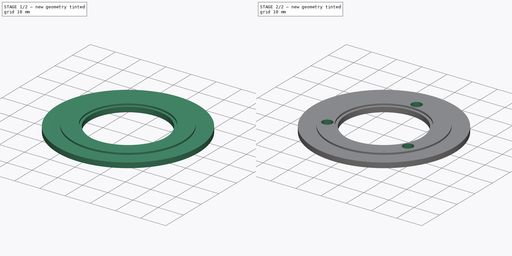
[diagram: build sequence overview — one tinted view per stage of 2, left to right]
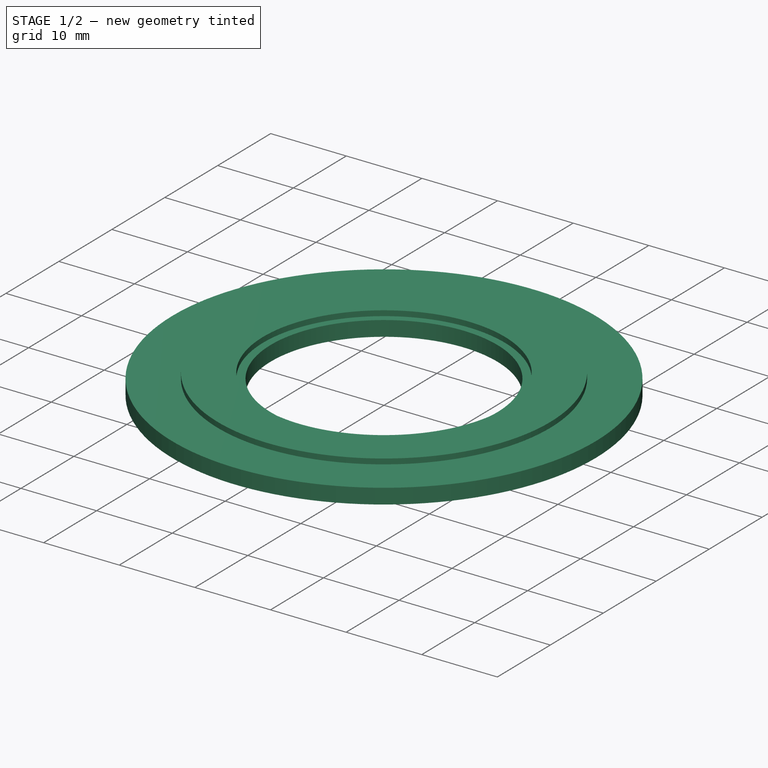
[diagram: stage 1 of 2 — iso view after this stage's code; geometry added in this stage tinted green]
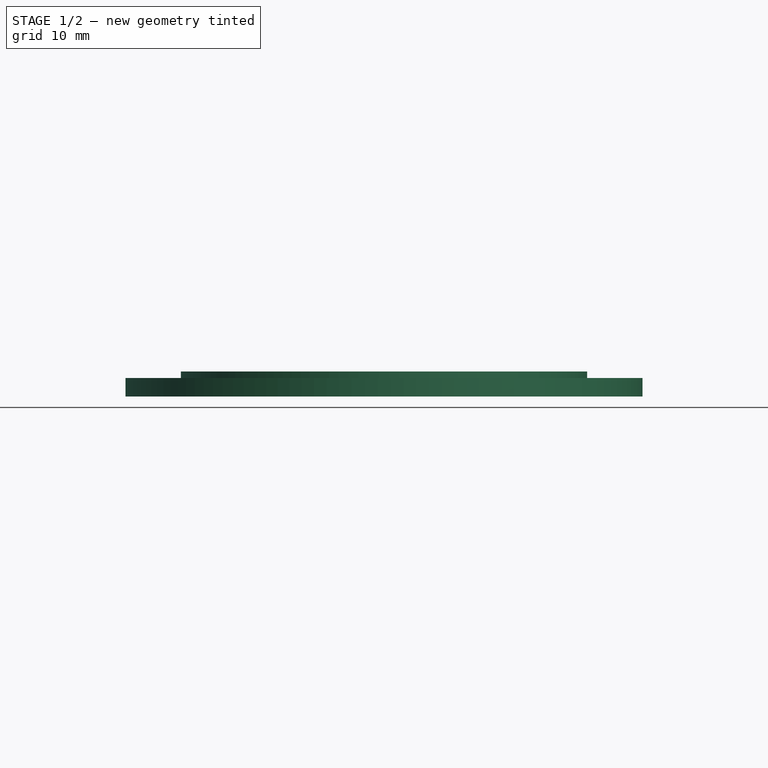
[diagram: stage 1 of 2 — front view after this stage's code; geometry added in this stage tinted green]
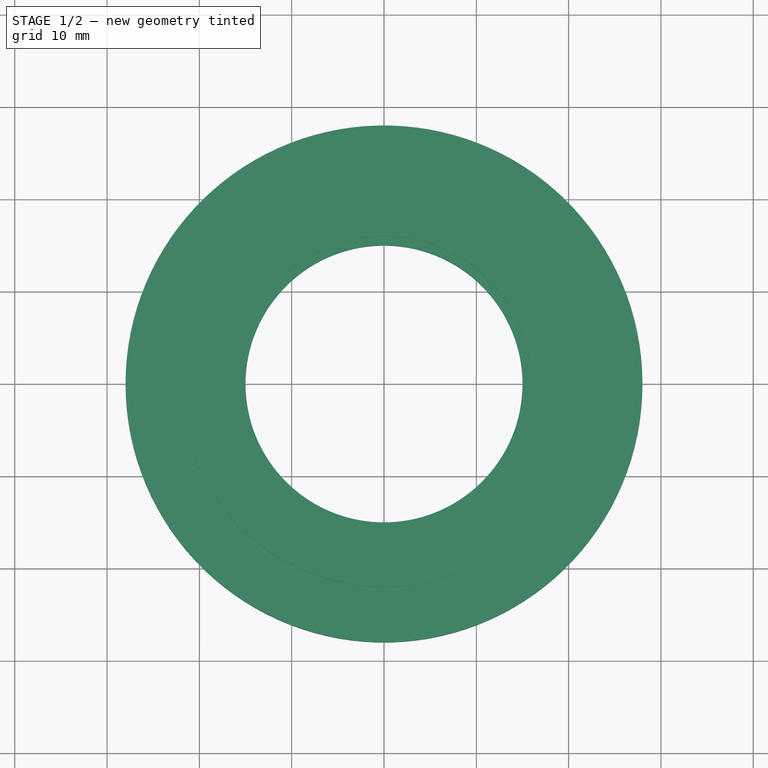
[diagram: stage 1 of 2 — top view after this stage's code; geometry added in this stage tinted green]
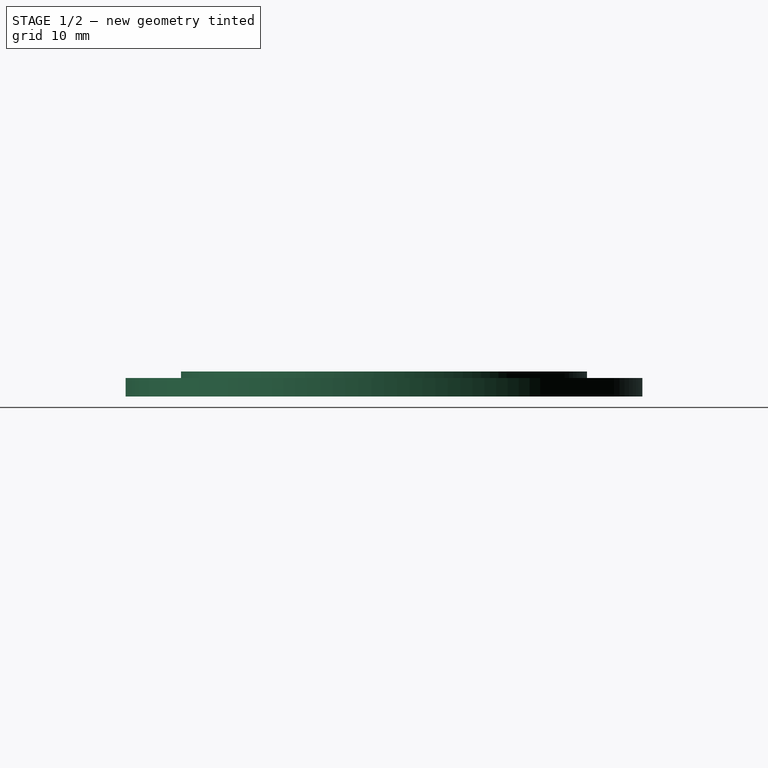
[diagram: stage 1 of 2 — right view after this stage's code; geometry added in this stage tinted green]
FCSTD DOCUMENT  (FreeCAD 0.19R24276 (Git))
Label: Ring_d30_d56_3_otv
License: All rights reserved
LicenseURL: http://en.wikipedia.org/wiki/All_rights_reserved
objects: Sketcher::SketchObject×3, PartDesign::Pad×2, PartDesign::Pocket×1, PartDesign::Body×1
note: 10 computed .brp shape members not serialized (recipe doc carries the construction recipe); baked Part::Feature solids carry a one-line shape summary decoded from their .brp

FEATURE [Sketcher::SketchObject] Sketch  label="Sketch_d30_d56"
  FullyConstrained = true
  MapMode = 5
  Support = -> [XY_Plane]
  sketch-geometry (9):
    g0: Circle CenterX=0 CenterY=0 CenterZ=0 NormalX=0 NormalY=0 NormalZ=1 AngleXU=0 Radius=15
    g1: Circle CenterX=0 CenterY=0 CenterZ=0 NormalX=0 NormalY=0 NormalZ=1 AngleXU=0 Radius=28
    g2: LineSegment StartX=0 StartY=18.5 StartZ=0 EndX=-16.0215 EndY=-9.25 EndZ=0
    g3: LineSegment StartX=-16.0215 StartY=-9.25 StartZ=0 EndX=16.0215 EndY=-9.25 EndZ=0
    g4: LineSegment StartX=16.0215 StartY=-9.25 StartZ=0 EndX=0 EndY=18.5 EndZ=0
    g5: Circle CenterX=0 CenterY=0 CenterZ=0 NormalX=0 NormalY=0 NormalZ=1 AngleXU=0 Radius=18.5
    g6: Circle CenterX=0 CenterY=18.5 CenterZ=0 NormalX=0 NormalY=0 NormalZ=1 AngleXU=0 Radius=2
    g7: Circle CenterX=16.0215 CenterY=-9.25 CenterZ=0 NormalX=0 NormalY=0 NormalZ=1 AngleXU=0 Radius=2
    g8: Circle CenterX=-16.0215 CenterY=-9.25 CenterZ=0 NormalX=0 NormalY=0 NormalZ=1 AngleXU=0 Radius=2
  constraints (21):
    c: Coincident(g0,g-1)
    c: Coincident(g1,g0)
    c: Coincident(g2,g3)
    c: Coincident(g3,g4)
    c: Coincident(g4,g2)
    c: Equal(g2,g3)
    c: Equal(g2,g4)
    c: PointOnObject(g2,g5)
    c: PointOnObject(g3,g5)
    c: PointOnObject(g4,g5)
    c: Coincident(g5,g0)
    c: PointOnObject(g4,g-2)
    c: Diameter(g0) = 30
    c: Diameter(g1) = 56
    c: Diameter(g5) = 37
    c: Coincident(g6,g2)
    c: Coincident(g7,g3)
    c: Coincident(g8,g2)
    c: Diameter(g8) = 4
    c: Equal(g8,g6)
    c: Equal(g8,g7)
FEATURE [PartDesign::Pad] Pad  label="Pad_h2"
  Direction = (1,1,1)
  Length = 2
  Length2 = 100
  Profile = -> Sketch
  Type = 0
FEATURE [Sketcher::SketchObject] Sketch002  label="Sketch_3_otv"
  FullyConstrained = false
  MapMode = 5
  Support = -> [XY_Plane]
  sketch-geometry (7):
    g0: LineSegment StartX=0 StartY=18.5 StartZ=0 EndX=-16.0215 EndY=-9.25 EndZ=0
    g1: LineSegment StartX=-16.0215 StartY=-9.25 StartZ=0 EndX=16.0215 EndY=-9.25 EndZ=0
    g2: LineSegment StartX=16.0215 StartY=-9.25 StartZ=0 EndX=0 EndY=18.5 EndZ=0
    g3: Circle CenterX=0 CenterY=0 CenterZ=0 NormalX=0 NormalY=0 NormalZ=1 AngleXU=0 Radius=18.5
    g4: Circle CenterX=0 CenterY=18.5 CenterZ=0 NormalX=0 NormalY=0 NormalZ=1 AngleXU=0 Radius=2
    g5: Circle CenterX=16.0215 CenterY=-9.25 CenterZ=0 NormalX=0 NormalY=0 NormalZ=1 AngleXU=0 Radius=2
    g6: Circle CenterX=-16.0215 CenterY=-9.25 CenterZ=0 NormalX=0 NormalY=0 NormalZ=1 AngleXU=0 Radius=2
  constraints (16):
    c: Coincident(g0,g1)
    c: Coincident(g1,g2)
    c: Coincident(g2,g0)
    c: Equal(g0,g1)
    c: Equal(g0,g2)
    c: PointOnObject(g0,g3)
    c: PointOnObject(g1,g3)
    c: PointOnObject(g2,g3)
    c: PointOnObject(g2,g-2)
    c: Diameter(g3) = 37
    c: Coincident(g4,g0)
    c: Coincident(g5,g1)
    c: Coincident(g6,g0)
    c: Diameter(g6) = 4
    c: Equal(g6,g4)
    c: Equal(g6,g5)
FEATURE [Sketcher::SketchObject] Sketch003  label="Sketch003_d32_d44"
  FullyConstrained = true
  MapMode = 5
  Placement = pos=(0,0,2) rot=(0,0,1;0rad)
  Support = -> [Pad]
  sketch-geometry (2):
    g0: Circle CenterX=0 CenterY=0 CenterZ=0 NormalX=0 NormalY=0 NormalZ=1 AngleXU=0 Radius=22
    g1: Circle CenterX=0 CenterY=0 CenterZ=0 NormalX=0 NormalY=0 NormalZ=1 AngleXU=0 Radius=16
  constraints (4):
    c: Coincident(g0,g-1)
    c: Coincident(g1,g0)
    c: Diameter(g1) = 32
    c: Diameter(g0) = 44
FEATURE [PartDesign::Pad] Pad001  label="Pad001_h0,7"
  BaseFeature = -> Pad
  Direction = (1,1,1)
  Length = 0.7
  Length2 = 100
  Profile = -> Sketch003
  Type = 0
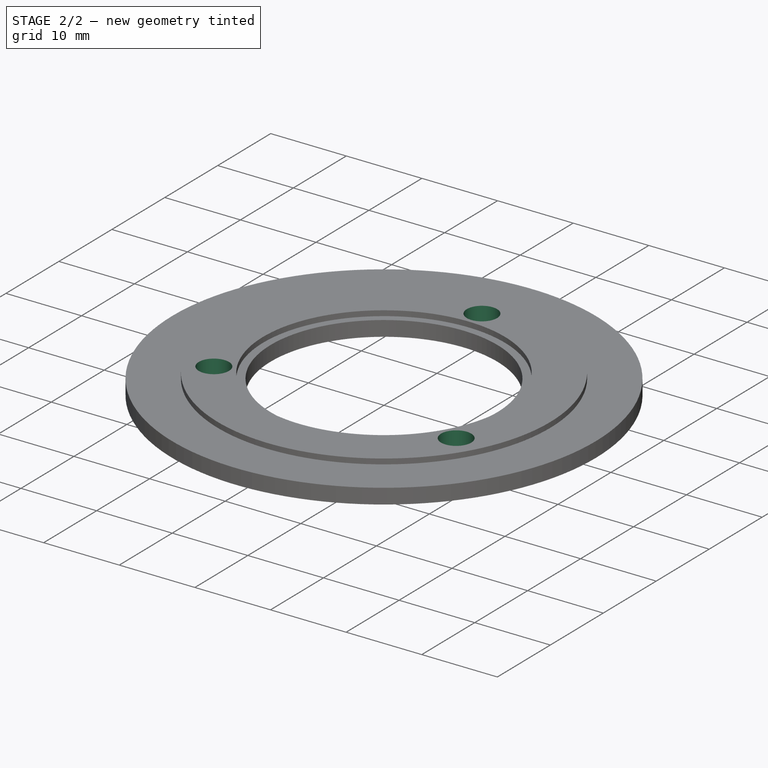
[diagram: stage 2 of 2 — iso view after this stage's code; geometry added in this stage tinted green]
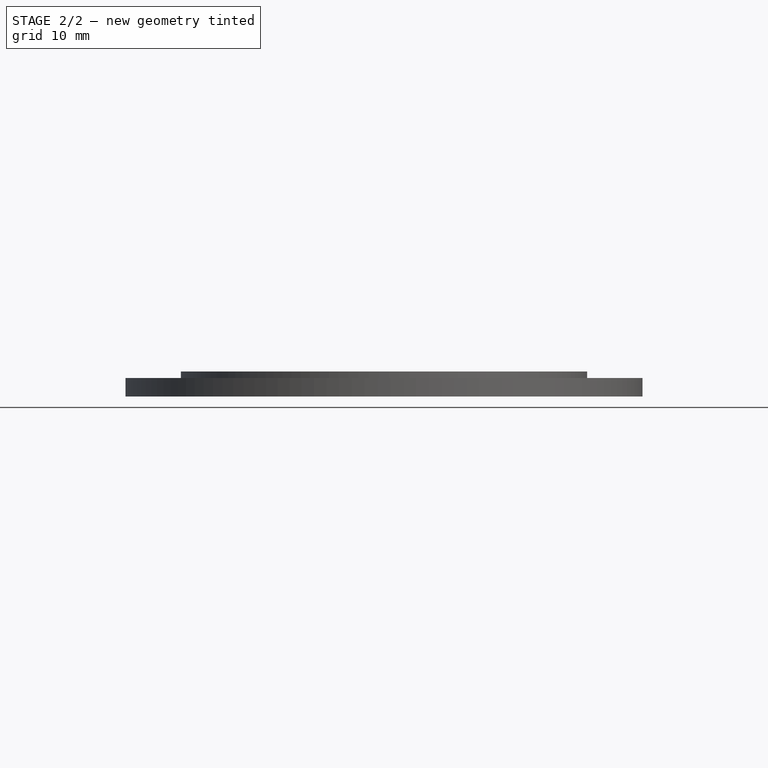
[diagram: stage 2 of 2 — front view after this stage's code; geometry added in this stage tinted green]
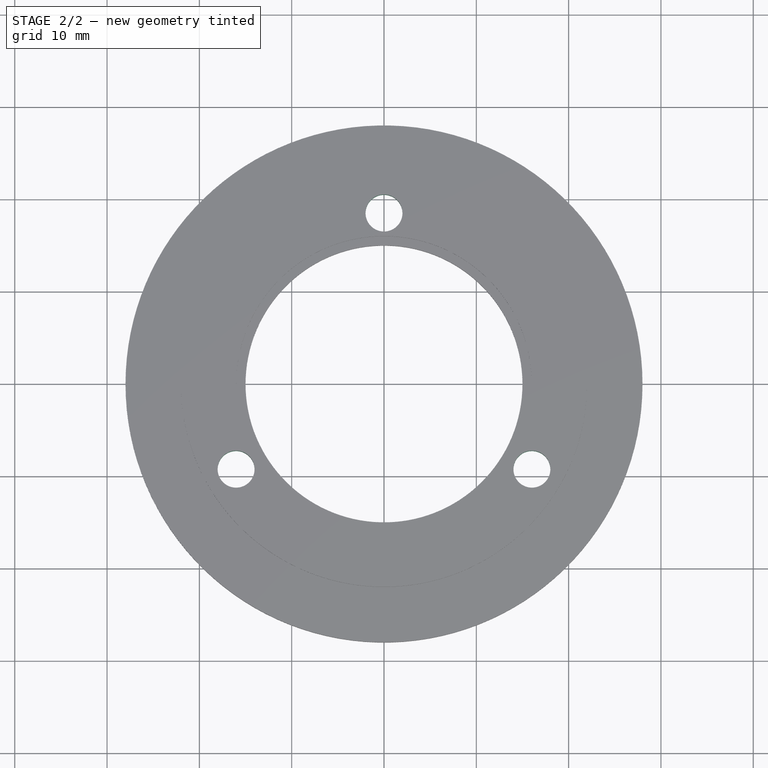
[diagram: stage 2 of 2 — top view after this stage's code; geometry added in this stage tinted green]
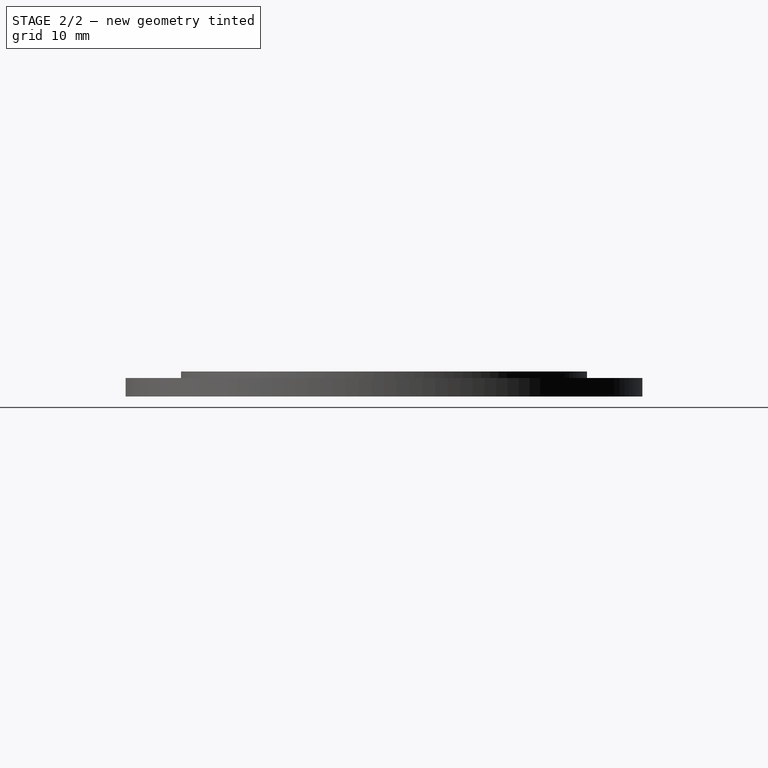
[diagram: stage 2 of 2 — right view after this stage's code; geometry added in this stage tinted green]
FEATURE [PartDesign::Pocket] Pocket
  BaseFeature = -> Pad001
  Length = 5
  Length2 = 100
  Profile = -> Sketch002
  Reversed = true
  Type = 1
FEATURE [PartDesign::Body] Body
  Group = -> [Sketch,Pad,Sketch003,Pad001,Sketch002,Pocket]
  Origin = -> Origin
  Tip = -> Pocket
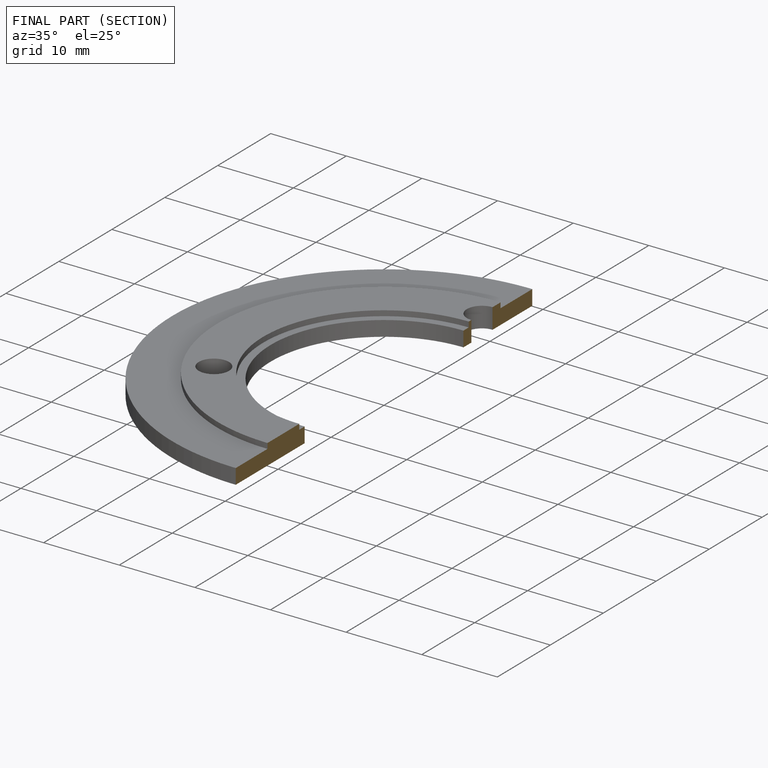
[diagram: finished part — half-section view (interior)]
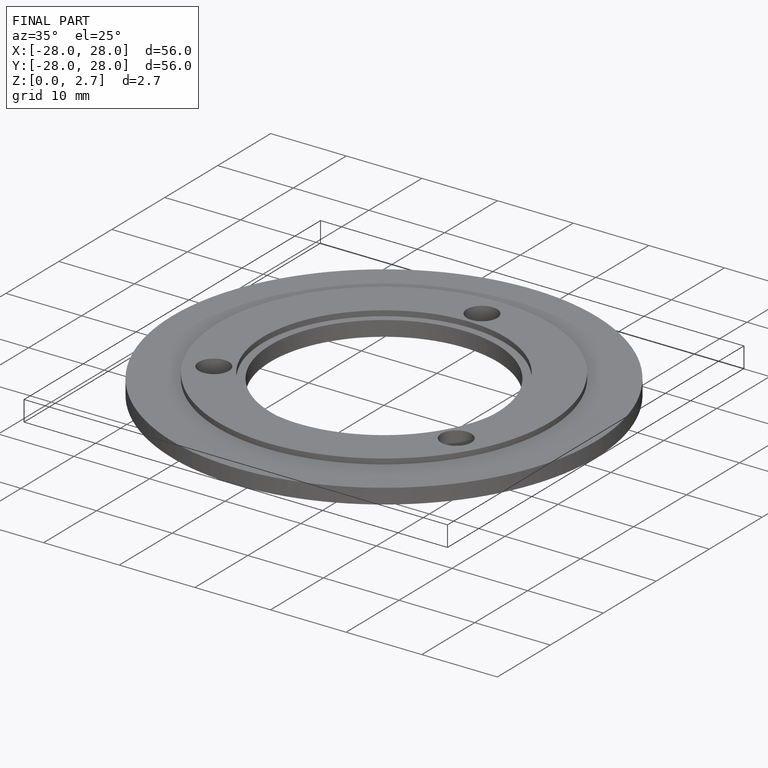
[diagram: finished part — iso view with bounding-box wireframe]
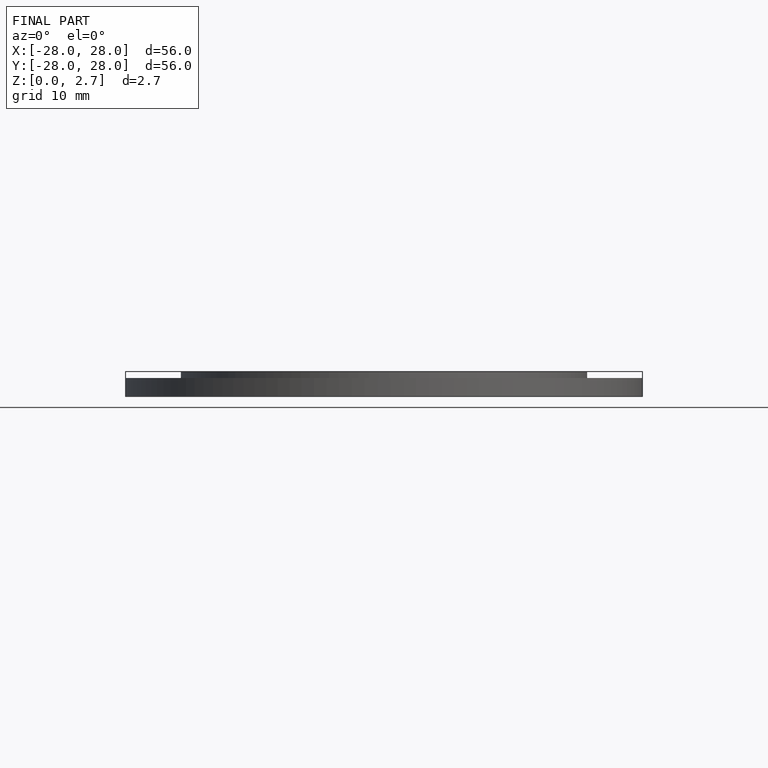
[diagram: finished part — front view with bounding-box wireframe]
